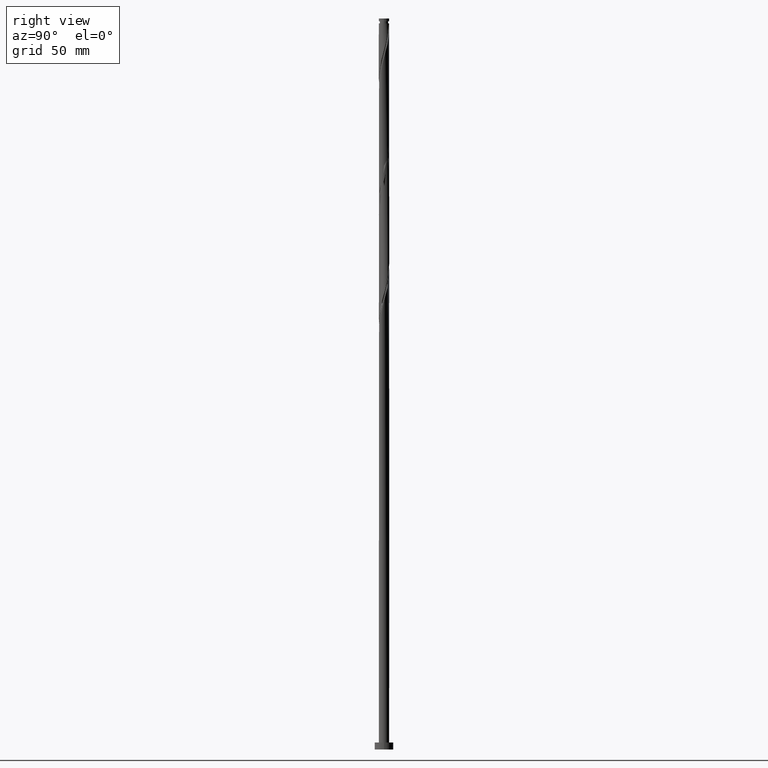
[diagram: clean part render]
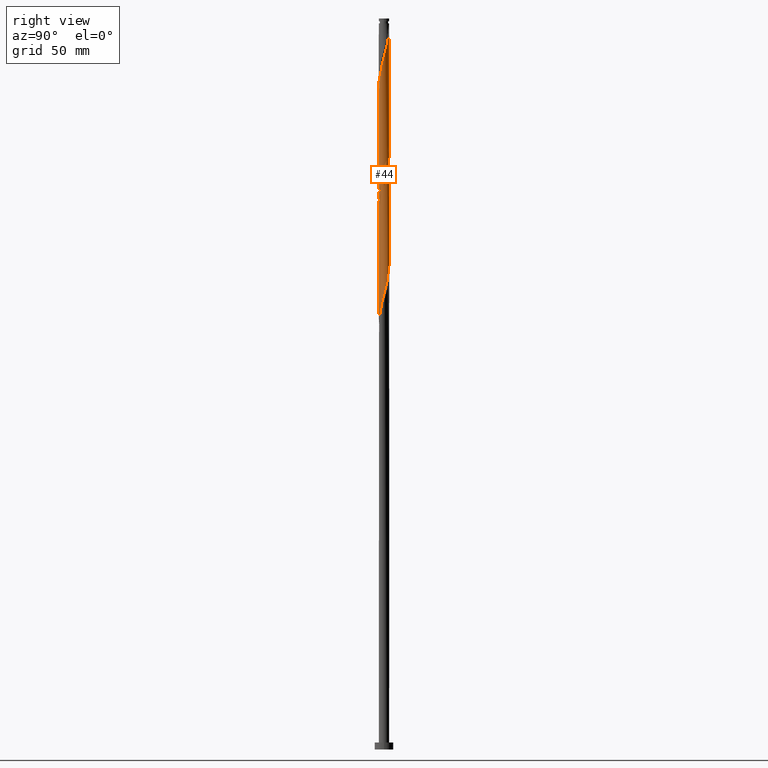
[diagram: same view with one face highlighted and labeled with its STEP entity id]
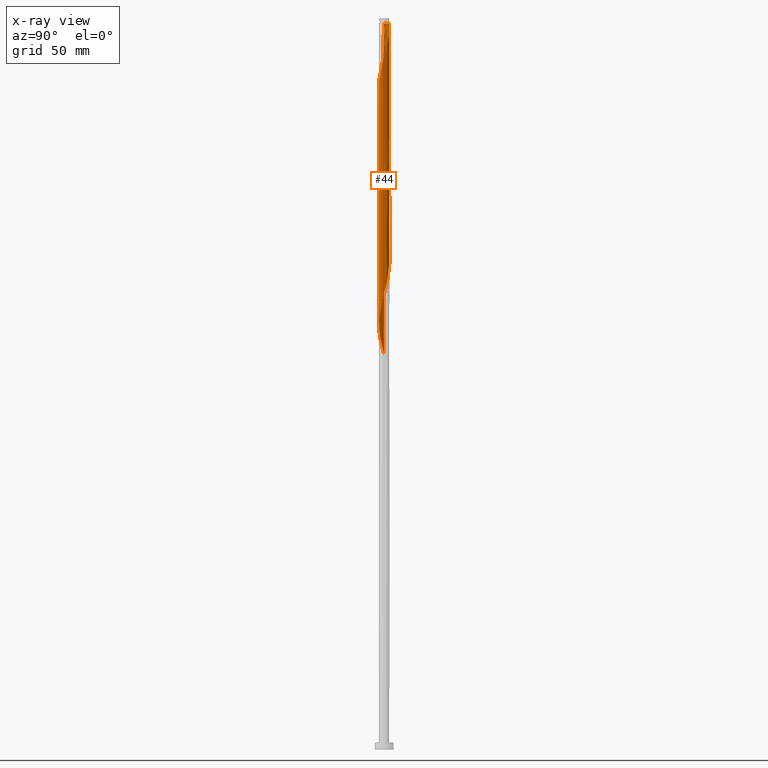
[diagram: x-ray of the same camera — body ghosted, the highlighted face saturated]
A machine part, right view. The second image highlights one B-rep face of the part: STEP entity #44.
The next image is the same camera in x-ray: the body ghosted, the highlighted face saturated — about 0% of this face is hidden behind the body in this view.
In plain terms, the highlighted cylindrical surface (bore or boss wall) has radius 2.25 mm, axis along (-0, -0, -1).
Its self-contained STEP definition (entity closure, byte-faithful):
#5 = CARTESIAN_POINT ( 'NONE',  ( -0.5533099276000269517, 2.180905345038903320, 211.6820797550641657 ) ) ;
#13 = CARTESIAN_POINT ( 'NONE',  ( 1.444774384835912029, -1.724855639444069944, 189.1820797550642510 ) ) ;
#23 = CARTESIAN_POINT ( 'NONE',  ( 2.154551328133884169, -0.6961881791777267958, 193.8695797550642794 ) ) ;
#28 = VECTOR ( 'NONE', #926, 1000.000000000000000 ) ;
#32 = CARTESIAN_POINT ( 'NONE',  ( 0.1993005142182367462, 2.255448671866116861, 208.8695797550642510 ) ) ;
#38 = EDGE_CURVE ( 'NONE', #1648, #606, #154, .T. ) ;
#44 = ADVANCED_FACE ( 'NONE', ( #1285 ), #888, .T. ) ;
#80 = CARTESIAN_POINT ( 'NONE',  ( -2.050083556160025910, 0.9271771204911509745, 271.6820797550641942 ) ) ;
#106 = CARTESIAN_POINT ( 'NONE',  ( 2.250000000000000888, -2.600816036125863714E-15, 248.9815968329702969 ) ) ;
#109 = CARTESIAN_POINT ( 'NONE',  ( 0.05414019825619529463, -2.249348536561815326, 236.0570797550642226 ) ) ;
#115 = CARTESIAN_POINT ( 'NONE',  ( 2.003102452848098736, 1.024734386752944593, 252.9320797550642226 ) ) ;
#134 = CARTESIAN_POINT ( 'NONE',  ( -0.4477443466980542963, 2.205000000000635563, 312.9320797550643647 ) ) ;
#136 = CARTESIAN_POINT ( 'NONE',  ( -2.243248401257516456, -0.3075809107306274881, 223.8695797550642510 ) ) ;
#144 = CARTESIAN_POINT ( 'NONE',  ( 0.6961881791777269068, 2.154551328133884169, 206.9945797550642510 ) ) ;
#153 = CARTESIAN_POINT ( 'NONE',  ( -0.1993005142182328604, 2.255448671866118193, 311.9945797550641373 ) ) ;
#154 =( BOUNDED_CURVE ( )  B_SPLINE_CURVE ( 2, ( #1352, #1783, #793, #268, #1497, #1075, #929, #1221, #511, #548, #1045, #411, #677, #1613, #109, #375, #1066, #1794, #258, #912, #800, #669, #156, #455, #700, #563, #1688, #136, #715, #287, #827, #1801, #311, #437, #1398, #420, #1240, #164, #956, #1519, #5, #1379, #854, #32, #820, #144, #1677, #691, #1513, #306, #1250, #976, #448, #846, #1539, #706, #1257, #1100, #984, #23, #579, #1671, #1116, #1404, #13, #172, #1545, #1267, #569, #1370, #587, #428, #1109, #968, #1125, #1529, #1694, #277, #685, #1231, #297, #838, #555, #1091, #1391, #1660, #620 ),
 .UNSPECIFIED., .F., .T. ) 
 B_SPLINE_CURVE_WITH_KNOTS ( ( 3, 2, 2, 2, 2, 2, 2, 2, 2, 2, 2, 2, 2, 2, 2, 2, 2, 2, 2, 2, 2, 2, 2, 2, 2, 2, 2, 2, 2, 2, 2, 2, 2, 2, 2, 2, 2, 2, 2, 2, 2, 2, 2, 3 ),
 ( 0.5545303401299221946, 0.5625000000000000000, 0.5714285714285713969, 0.5803571428571429047, 0.5892857142857143016, 0.5982142857142856984, 0.6071428571428570953, 0.6160714285714286031, 0.6250000000000000000, 0.6339285714285713969, 0.6428571428571429047, 0.6517857142857143016, 0.6607142857142856984, 0.6696428571428570953, 0.6785714285714286031, 0.6875000000000000000, 0.6964285714285713969, 0.7053571428571429047, 0.7142857142857143016, 0.7232142857142856984, 0.7321428571428570953, 0.7410714285714286031, 0.7500000000000000000, 0.7589285714285713969, 0.7678571428571429047, 0.7767857142857143016, 0.7857142857142856984, 0.7946428571428570953, 0.8035714285714286031, 0.8125000000000000000, 0.8214285714285713969, 0.8303571428571429047, 0.8392857142857143016, 0.8482142857142856984, 0.8571428571428570953, 0.8660714285714286031, 0.8750000000000000000, 0.8839285714285713969, 0.8928571428571427937, 0.9017857142857143016, 0.9107142857142856984, 0.9196428571428570953, 0.9285714285714286031, 0.9295303401299218615 ),
 .UNSPECIFIED. ) 
 CURVE ( )  GEOMETRIC_REPRESENTATION_ITEM ( )  RATIONAL_B_SPLINE_CURVE ( ( 0.9079949616362277265, 0.9039886423360908863, 0.9090909090909577994, 0.9033747362666324499, 0.9090909090909577994, 0.9033747362666324499, 0.9090909090909577994, 0.9033747362666324499, 0.9090909090909577994, 0.9033747362666324499, 0.9090909090909577994, 0.9033747362666324499, 0.9090909090909577994, 0.9033747362666324499, 0.9090909090909577994, 0.9033747362666324499, 0.9090909090909577994, 0.9033747362666324499, 0.9090909090909577994, 0.9033747362666324499, 0.9090909090909577994, 0.9033747362666324499, 0.9090909090909577994, 0.9033747362666324499, 0.9090909090909577994, 0.9033747362666324499, 0.9090909090909577994, 0.9033747362666324499, 0.9090909090909577994, 0.9033747362666324499, 0.9090909090909577994, 0.9033747362666324499, 0.9090909090909577994, 0.9033747362666324499, 0.9090909090909577994, 0.9033747362666324499, 0.9090909090909577994, 0.9033747362666324499, 0.9090909090909577994, 0.9033747362666324499, 0.9090909090909577994, 0.9033747362666324499, 0.9090909090909577994, 0.9033747362666324499, 0.9090909090909577994, 0.9033747362666324499, 0.9090909090909577994, 0.9033747362666324499, 0.9090909090909577994, 0.9033747362666324499, 0.9090909090909577994, 0.9033747362666324499, 0.9090909090909577994, 0.9033747362666324499, 0.9090909090909577994, 0.9033747362666324499, 0.9090909090909577994, 0.9033747362666324499, 0.9090909090909577994, 0.9033747362666324499, 0.9090909090909577994, 0.9033747362666324499, 0.9090909090909577994, 0.9033747362666324499, 0.9090909090909577994, 0.9033747362666324499, 0.9090909090909577994, 0.9033747362666324499, 0.9090909090909577994, 0.9033747362666324499, 0.9090909090909577994, 0.9033747362666324499, 0.9090909090909577994, 0.9033747362666324499, 0.9090909090909577994, 0.9033747362666324499, 0.9090909090909577994, 0.9033747362666324499, 0.9090909090909577994, 0.9033747362666324499, 0.9090909090909577994, 0.9033747362666324499, 0.9090909090909577994, 0.9033747362666324499, 0.9090909090909577994, 0.9084770030214996961, 0.9079949616362281706 ) ) 
 REPRESENTATION_ITEM ( '' )  );
#156 = CARTESIAN_POINT ( 'NONE',  ( -1.724855639444069721, -1.444774384835912473, 228.5570797550642226 ) ) ;
#163 = CARTESIAN_POINT ( 'NONE',  ( 2.003102452848099180, -1.024734386752946591, 294.1820797550641942 ) ) ;
#164 = CARTESIAN_POINT ( 'NONE',  ( -1.250429829036464380, 1.887642616875907065, 214.4945797550642226 ) ) ;
#172 = CARTESIAN_POINT ( 'NONE',  ( 1.250429829036463714, -1.887642616875907287, 188.2445797550642226 ) ) ;
#218 = CIRCLE ( 'NONE', #1020, 2.249999999999973355 ) ;
#220 = CARTESIAN_POINT ( 'NONE',  ( -2.154551328133884169, 0.6961881791777263517, 272.6195797550642510 ) ) ;
#229 = CARTESIAN_POINT ( 'NONE',  ( 0.4477443466979820763, 2.204999999999998739, 260.4320797550641942 ) ) ;
#242 = CARTESIAN_POINT ( 'NONE',  ( 0.6961881791777269068, 2.154551328133884169, 259.4945797550643078 ) ) ;
#252 = CARTESIAN_POINT ( 'NONE',  ( -2.204999999999998739, 0.4477443466979816322, 273.5570797550641373 ) ) ;
#258 = CARTESIAN_POINT ( 'NONE',  ( -0.9271771204911509745, -2.050083556160025910, 232.3070797550641657 ) ) ;
#268 = CARTESIAN_POINT ( 'NONE',  ( 2.154551328133884169, -0.6961881791777267958, 246.3695797550642226 ) ) ;
#272 = EDGE_CURVE ( 'NONE', #1506, #811, #218, .T. ) ;
#277 = CARTESIAN_POINT ( 'NONE',  ( -1.562068662012233489, -1.639118940635362343, 176.9945797550642510 ) ) ;
#287 = CARTESIAN_POINT ( 'NONE',  ( -2.255448671866115973, 0.1993005142182368850, 221.9945797550641942 ) ) ;
#288 = LINE ( 'NONE', #429, #1414 ) ;
#294 = CARTESIAN_POINT ( 'NONE',  ( 2.180905345038904652, -0.5533099276000280620, 296.0570797550643078 ) ) ;
#297 = CARTESIAN_POINT ( 'NONE',  ( -2.003102452848098736, -1.024734386752944815, 174.1820797550641657 ) ) ;
#299 = CARTESIAN_POINT ( 'NONE',  ( -2.249999999999973355, 0.000000000000000000, 312.9320797550641942 ) ) ;
#306 = CARTESIAN_POINT ( 'NONE',  ( 1.562068662012233711, 1.639118940635362121, 203.2445797550642794 ) ) ;
#310 = CARTESIAN_POINT ( 'NONE',  ( 2.249348536561817991, -0.05414019825619617587, 297.9320797550641942 ) ) ;
#311 = CARTESIAN_POINT ( 'NONE',  ( -2.050083556160025910, 0.9271771204911509745, 219.1820797550642226 ) ) ;
#322 = DIRECTION ( 'NONE',  ( -0.000000000000000000, -0.000000000000000000, -1.000000000000000000 ) ) ;
#332 = CARTESIAN_POINT ( 'NONE',  ( 0.000000000000000000, 0.000000000000000000, 315.0000000000000000 ) ) ;
#341 = ORIENTED_EDGE ( 'NONE', *, *, #1792, .T. ) ;
#371 = CARTESIAN_POINT ( 'NONE',  ( -1.639118940635362343, 1.562068662012233267, 268.8695797550643078 ) ) ;
#375 = CARTESIAN_POINT ( 'NONE',  ( -0.1993005142182369682, -2.255448671866115973, 235.1195797550641942 ) ) ;
#393 = ORIENTED_EDGE ( 'NONE', *, *, #636, .F. ) ;
#408 = CARTESIAN_POINT ( 'NONE',  ( 0.5533099276000282840, 2.180905345038904652, 309.1820797550643078 ) ) ;
#411 = CARTESIAN_POINT ( 'NONE',  ( 0.7990389444694261378, -2.118562288820290185, 238.8695797550641942 ) ) ;
#420 = CARTESIAN_POINT ( 'NONE',  ( -1.639118940635362343, 1.562068662012233267, 216.3695797550641942 ) ) ;
#426 = CARTESIAN_POINT ( 'NONE',  ( 1.639118940635364341, 1.562068662012233933, 304.4945797550641942 ) ) ;
#428 = CARTESIAN_POINT ( 'NONE',  ( -0.1993005142182369682, -2.255448671866115973, 182.6195797550642510 ) ) ;
#429 = CARTESIAN_POINT ( 'NONE',  ( -2.250000000000000000, 0.000000000000000000, 315.0000000000000000 ) ) ;
#437 = CARTESIAN_POINT ( 'NONE',  ( -1.945615784186168984, 1.158166061804576152, 218.2445797550642794 ) ) ;
#448 = CARTESIAN_POINT ( 'NONE',  ( 2.003102452848098736, 1.024734386752944593, 200.4320797550642510 ) ) ;
#455 = CARTESIAN_POINT ( 'NONE',  ( -1.887642616875907065, -1.250429829036463714, 227.6195797550642226 ) ) ;
#481 = DIRECTION ( 'NONE',  ( -1.000000000000000000, 0.000000000000000000, 0.000000000000000000 ) ) ;
#497 = CARTESIAN_POINT ( 'NONE',  ( 1.724855639444069944, 1.444774384835912029, 254.8070797550642226 ) ) ;
#498 = CARTESIAN_POINT ( 'NONE',  ( -1.792367362410767440, -1.360117361908405487, 277.3070797550641373 ) ) ;
#507 = CARTESIAN_POINT ( 'NONE',  ( -0.3075809107306279322, 2.243248401257516456, 263.2445797550642510 ) ) ;
#511 = CARTESIAN_POINT ( 'NONE',  ( 1.444774384835912029, -1.724855639444069944, 241.6820797550642226 ) ) ;
#526 = CARTESIAN_POINT ( 'NONE',  ( -1.945615784186170538, -1.158166061804576374, 276.3695797550641942 ) ) ;
#536 = CARTESIAN_POINT ( 'NONE',  ( -0.5533099276000279509, -2.180905345038904652, 282.9320797550641373 ) ) ;
#548 = CARTESIAN_POINT ( 'NONE',  ( 1.250429829036463714, -1.887642616875907287, 240.7445797550642794 ) ) ;
#555 = CARTESIAN_POINT ( 'NONE',  ( -2.180905345038903320, -0.5533099276000267297, 172.3070797550641942 ) ) ;
#563 = CARTESIAN_POINT ( 'NONE',  ( -2.118562288820290185, -0.7990389444694261378, 225.7445797550642794 ) ) ;
#569 = CARTESIAN_POINT ( 'NONE',  ( 0.5533099276000267297, -2.180905345038903320, 185.4320797550641657 ) ) ;
#573 = EDGE_LOOP ( 'NONE', ( #1469, #1419, #393, #341, #1428, #1038, #1631, #748 ) ) ;
#575 = EDGE_CURVE ( 'NONE', #1506, #1708, #901, .T. ) ;
#579 = CARTESIAN_POINT ( 'NONE',  ( 2.050083556160025910, -0.9271771204911513076, 192.9320797550641942 ) ) ;
#587 = CARTESIAN_POINT ( 'NONE',  ( 0.05414019825619529463, -2.249348536561815326, 183.5570797550642510 ) ) ;
#603 = CARTESIAN_POINT ( 'NONE',  ( -2.250000000000002220, 1.548549002858290635E-15, 271.8825626771580914 ) ) ;
#606 = VERTEX_POINT ( 'NONE', #635 ) ;
#616 = VERTEX_POINT ( 'NONE', #1181 ) ;
#620 = CARTESIAN_POINT ( 'NONE',  ( -2.250000000000000888, 2.354540773020688484E-15, 170.2315968329703253 ) ) ;
#626 = CARTESIAN_POINT ( 'NONE',  ( -2.250000000000000444, -1.115701570734050336E-15, 275.2315968329703537 ) ) ;
#635 = CARTESIAN_POINT ( 'NONE',  ( -2.250000000000000888, 2.354540773020688484E-15, 170.2315968329703253 ) ) ;
#636 = EDGE_CURVE ( 'NONE', #958, #811, #1018, .T. ) ;
#655 = CARTESIAN_POINT ( 'NONE',  ( -1.250429829036464380, 1.887642616875907065, 266.9945797550642510 ) ) ;
#660 = CARTESIAN_POINT ( 'NONE',  ( 2.250000000000000888, -2.600816036125863714E-15, 248.9815968329702969 ) ) ;
#665 = CARTESIAN_POINT ( 'NONE',  ( -1.024734386752946369, -2.003102452848099180, 281.0570797550641373 ) ) ;
#669 = CARTESIAN_POINT ( 'NONE',  ( -1.562068662012233489, -1.639118940635362343, 229.4945797550642510 ) ) ;
#671 = CARTESIAN_POINT ( 'NONE',  ( -2.250000000000000000, -1.115701570734050336E-15, 275.2315968329703537 ) ) ;
#676 = CARTESIAN_POINT ( 'NONE',  ( 0.4477443466979814657, -2.205000000000001847, 286.6820797550640805 ) ) ;
#677 = CARTESIAN_POINT ( 'NONE',  ( 0.5533099276000267297, -2.180905345038903320, 237.9320797550642226 ) ) ;
#685 = CARTESIAN_POINT ( 'NONE',  ( -1.724855639444069721, -1.444774384835912473, 176.0570797550642226 ) ) ;
#689 = CARTESIAN_POINT ( 'NONE',  ( 1.945615784186170538, 1.158166061804575486, 302.6195797550641942 ) ) ;
#691 = CARTESIAN_POINT ( 'NONE',  ( 1.158166061804576374, 1.945615784186168318, 205.1195797550642794 ) ) ;
#699 = CARTESIAN_POINT ( 'NONE',  ( 1.158166061804576374, -1.945615784186170538, 289.4945797550641373 ) ) ;
#700 = CARTESIAN_POINT ( 'NONE',  ( -2.003102452848098736, -1.024734386752944815, 226.6820797550641942 ) ) ;
#705 = CARTESIAN_POINT ( 'NONE',  ( 0.7990389444694278032, 2.118562288820291517, 308.2445797550641373 ) ) ;
#706 = CARTESIAN_POINT ( 'NONE',  ( 2.243248401257516456, 0.3075809107306272105, 197.6195797550642794 ) ) ;
#713 = CARTESIAN_POINT ( 'NONE',  ( 1.444774384835914915, 1.724855639444071054, 305.4320797550641942 ) ) ;
#715 = CARTESIAN_POINT ( 'NONE',  ( -2.249348536561815326, -0.05414019825619541260, 222.9320797550642226 ) ) ;
#734 = DIRECTION ( 'NONE',  ( -0.000000000000000000, -0.000000000000000000, -1.000000000000000000 ) ) ;
#743 = DIRECTION ( 'NONE',  ( -0.000000000000000000, -0.000000000000000000, -1.000000000000000000 ) ) ;
#748 = ORIENTED_EDGE ( 'NONE', *, *, #1216, .F. ) ;
#771 = CARTESIAN_POINT ( 'NONE',  ( -0.05414019825619550280, 2.249348536561815326, 262.3070797550642510 ) ) ;
#787 = CARTESIAN_POINT ( 'NONE',  ( -1.444774384835913139, 1.724855639444069721, 267.9320797550641942 ) ) ;
#793 = CARTESIAN_POINT ( 'NONE',  ( 2.204999999999998739, -0.4477443466979819098, 247.3070797550642226 ) ) ;
#797 = CARTESIAN_POINT ( 'NONE',  ( 0.9271771204911515296, 2.050083556160025466, 258.5570797550641942 ) ) ;
#800 = CARTESIAN_POINT ( 'NONE',  ( -1.360117361908404598, -1.792367362410764997, 230.4320797550642226 ) ) ;
#809 = CARTESIAN_POINT ( 'NONE',  ( -2.250000000000003997, -0.2261335084333156442, 272.7208337561216922 ) ) ;
#811 = VERTEX_POINT ( 'NONE', #134 ) ;
#820 = CARTESIAN_POINT ( 'NONE',  ( 0.4477443466979820763, 2.204999999999998739, 207.9320797550642510 ) ) ;
#826 = CARTESIAN_POINT ( 'NONE',  ( 1.024734386752946591, 2.003102452848099180, 307.3070797550641373 ) ) ;
#827 = CARTESIAN_POINT ( 'NONE',  ( -2.204999999999998739, 0.4477443466979816322, 221.0570797550642226 ) ) ;
#835 = CARTESIAN_POINT ( 'NONE',  ( 2.205000000000001847, 0.4477443466979812436, 299.8070797550641942 ) ) ;
#838 = CARTESIAN_POINT ( 'NONE',  ( -2.118562288820290185, -0.7990389444694261378, 173.2445797550642794 ) ) ;
#845 = CARTESIAN_POINT ( 'NONE',  ( 1.792367362410767440, 1.360117361908405265, 303.5570797550641942 ) ) ;
#846 = CARTESIAN_POINT ( 'NONE',  ( 2.118562288820290185, 0.7990389444694260268, 199.4945797550642510 ) ) ;
#854 = CARTESIAN_POINT ( 'NONE',  ( -0.05414019825619550280, 2.249348536561815326, 209.8070797550642226 ) ) ;
#880 = LINE ( 'NONE', #1273, #1003 ) ;
#888 = CYLINDRICAL_SURFACE ( 'NONE', #1079, 2.250000000000000000 ) ;
#900 = CARTESIAN_POINT ( 'NONE',  ( 1.887642616875907287, 1.250429829036463714, 253.8695797550641373 ) ) ;
#901 = LINE ( 'NONE', #1329, #28 ) ;
#912 = CARTESIAN_POINT ( 'NONE',  ( -1.158166061804576152, -1.945615784186168984, 231.3695797550642510 ) ) ;
#924 = CARTESIAN_POINT ( 'NONE',  ( -2.249999999999999556, 0.2261335084333297996, 274.3933257540066393 ) ) ;
#926 = DIRECTION ( 'NONE',  ( -0.000000000000000000, -0.000000000000000000, -1.000000000000000000 ) ) ;
#929 = CARTESIAN_POINT ( 'NONE',  ( 1.792367362410764997, -1.360117361908404598, 243.5570797550642510 ) ) ;
#934 = CARTESIAN_POINT ( 'NONE',  ( 1.158166061804576374, 1.945615784186168318, 257.6195797550643078 ) ) ;
#935 = CARTESIAN_POINT ( 'NONE',  ( -0.05414019825619597465, -2.249348536561817991, 284.8070797550641373 ) ) ;
#956 = CARTESIAN_POINT ( 'NONE',  ( -1.024734386752945037, 2.003102452848098736, 213.5570797550642510 ) ) ;
#958 = VERTEX_POINT ( 'NONE', #603 ) ;
#966 = CARTESIAN_POINT ( 'NONE',  ( 1.724855639444071054, -1.444774384835914915, 292.3070797550641942 ) ) ;
#968 = CARTESIAN_POINT ( 'NONE',  ( -0.6961881791777263517, -2.154551328133884169, 180.7445797550642226 ) ) ;
#976 = CARTESIAN_POINT ( 'NONE',  ( 1.887642616875907287, 1.250429829036463714, 201.3695797550642226 ) ) ;
#982 = CARTESIAN_POINT ( 'NONE',  ( 1.360117361908405265, -1.792367362410767440, 290.4320797550642510 ) ) ;
#984 = CARTESIAN_POINT ( 'NONE',  ( 2.204999999999998739, -0.4477443466979819098, 194.8070797550642226 ) ) ;
#1003 = VECTOR ( 'NONE', #743, 1000.000000000000000 ) ;
#1018 =( BOUNDED_CURVE ( )  B_SPLINE_CURVE ( 2, ( #1638, #809, #1049, #1199, #1773, #526, #498, #1629, #1495, #1349, #665, #1207, #536, #1073, #935, #1359, #676, #1035, #1538, #699, #982, #1686, #966, #1114, #163, #1544, #294, #1081, #310, #1230, #835, #1378, #1675, #689, #845, #426, #713, #1527, #826, #705, #408, #1647, #1518, #153, #1397 ),
 .UNSPECIFIED., .F., .T. ) 
 B_SPLINE_CURVE_WITH_KNOTS ( ( 3, 2, 2, 2, 2, 2, 2, 2, 2, 2, 2, 2, 2, 2, 2, 2, 2, 2, 2, 2, 2, 2, 3 ),
 ( 0.5545303401299217505, 0.5625000000000000000, 0.5714285714285713969, 0.5803571428571427937, 0.5892857142857143016, 0.5982142857142856984, 0.6071428571428572063, 0.6160714285714286031, 0.6250000000000000000, 0.6339285714285713969, 0.6428571428571427937, 0.6517857142857141906, 0.6607142857142855874, 0.6696428571428570953, 0.6785714285714284921, 0.6874999999999998890, 0.6964285714285712858, 0.7053571428571426827, 0.7142857142857141906, 0.7232142857142855874, 0.7321428571428570953, 0.7410714285714284921, 0.7499999999999998890 ),
 .UNSPECIFIED. ) 
 CURVE ( )  GEOMETRIC_REPRESENTATION_ITEM ( )  RATIONAL_B_SPLINE_CURVE ( ( 0.9079949616362321674, 0.9039886423360945500, 0.9090909090909616852, 0.9033747362666364467, 0.9090909090909616852, 0.9033747362666364467, 0.9090909090909616852, 0.9033747362666364467, 0.9090909090909616852, 0.9033747362666364467, 0.9090909090909616852, 0.9033747362666364467, 0.9090909090909616852, 0.9033747362666364467, 0.9090909090909616852, 0.9033747362666364467, 0.9090909090909616852, 0.9033747362666364467, 0.9090909090909616852, 0.9033747362666364467, 0.9090909090909616852, 0.9033747362666364467, 0.9090909090909616852, 0.9033747362666364467, 0.9090909090909616852, 0.9033747362666364467, 0.9090909090909616852, 0.9033747362666364467, 0.9090909090909616852, 0.9033747362666364467, 0.9090909090909616852, 0.9033747362666364467, 0.9090909090909616852, 0.9033747362666364467, 0.9090909090909616852, 0.9033747362666364467, 0.9090909090909616852, 0.9033747362666364467, 0.9090909090909616852, 0.9033747362666364467, 0.9090909090909616852, 0.9033747362666364467, 0.9090909090909616852, 0.9033747362666365577, 0.9090909090909615742 ) ) 
 REPRESENTATION_ITEM ( '' )  );
#1020 = AXIS2_PLACEMENT_3D ( 'NONE', #1311, #734, #481 ) ;
#1034 = CARTESIAN_POINT ( 'NONE',  ( -1.792367362410765663, 1.360117361908404376, 269.8070797550642510 ) ) ;
#1035 = CARTESIAN_POINT ( 'NONE',  ( 0.6961881791777264628, -2.154551328133885946, 287.6195797550641373 ) ) ;
#1038 = ORIENTED_EDGE ( 'NONE', *, *, #1182, .F. ) ;
#1045 = CARTESIAN_POINT ( 'NONE',  ( 1.024734386752944593, -2.003102452848098736, 239.8070797550642226 ) ) ;
#1049 = CARTESIAN_POINT ( 'NONE',  ( -2.205000000000001847, -0.4477443466979815212, 273.5570797550642510 ) ) ;
#1066 = CARTESIAN_POINT ( 'NONE',  ( -0.4477443466979817432, -2.204999999999998739, 234.1820797550642510 ) ) ;
#1073 = CARTESIAN_POINT ( 'NONE',  ( -0.3075809107306283763, -2.243248401257517788, 283.8695797550641373 ) ) ;
#1075 = CARTESIAN_POINT ( 'NONE',  ( 1.945615784186168318, -1.158166061804576152, 244.4945797550642510 ) ) ;
#1079 = AXIS2_PLACEMENT_3D ( 'NONE', #332, #322, #1742 ) ;
#1081 = CARTESIAN_POINT ( 'NONE',  ( 2.243248401257516900, -0.3075809107306285428, 296.9945797550641942 ) ) ;
#1091 = CARTESIAN_POINT ( 'NONE',  ( -2.243248401257516456, -0.3075809107306274881, 171.3695797550642510 ) ) ;
#1100 = CARTESIAN_POINT ( 'NONE',  ( 2.255448671866115973, -0.1993005142182371903, 195.7445797550642510 ) ) ;
#1109 = CARTESIAN_POINT ( 'NONE',  ( -0.4477443466979817432, -2.204999999999998739, 181.6820797550641657 ) ) ;
#1114 = CARTESIAN_POINT ( 'NONE',  ( 1.887642616875908175, -1.250429829036465490, 293.2445797550641942 ) ) ;
#1116 = CARTESIAN_POINT ( 'NONE',  ( 1.792367362410764997, -1.360117361908404598, 191.0570797550641657 ) ) ;
#1125 = CARTESIAN_POINT ( 'NONE',  ( -0.9271771204911509745, -2.050083556160025910, 179.8070797550641942 ) ) ;
#1169 = CARTESIAN_POINT ( 'NONE',  ( -1.024734386752945037, 2.003102452848098736, 266.0570797550641373 ) ) ;
#1181 = CARTESIAN_POINT ( 'NONE',  ( 2.250000000000000000, 2.755455298081544285E-16, 312.9320797550643647 ) ) ;
#1182 = EDGE_CURVE ( 'NONE', #616, #1648, #880, .T. ) ;
#1198 = CARTESIAN_POINT ( 'NONE',  ( -0.5533099276000269517, 2.180905345038903320, 264.1820797550641942 ) ) ;
#1199 = CARTESIAN_POINT ( 'NONE',  ( -2.154551328133885946, -0.6961881791777264628, 274.4945797550641373 ) ) ;
#1207 = CARTESIAN_POINT ( 'NONE',  ( -0.7990389444694278032, -2.118562288820291517, 281.9945797550641942 ) ) ;
#1216 = EDGE_CURVE ( 'NONE', #1708, #1648, #1659, .T. ) ;
#1221 = CARTESIAN_POINT ( 'NONE',  ( 1.639118940635362343, -1.562068662012233489, 242.6195797550642794 ) ) ;
#1230 = CARTESIAN_POINT ( 'NONE',  ( 2.255448671866118193, 0.1993005142182362743, 298.8695797550642510 ) ) ;
#1231 = CARTESIAN_POINT ( 'NONE',  ( -1.887642616875907065, -1.250429829036463714, 175.1195797550642226 ) ) ;
#1240 = CARTESIAN_POINT ( 'NONE',  ( -1.444774384835913139, 1.724855639444069721, 215.4320797550641657 ) ) ;
#1241 = DIRECTION ( 'NONE',  ( -0.000000000000000000, -0.000000000000000000, -1.000000000000000000 ) ) ;
#1250 = CARTESIAN_POINT ( 'NONE',  ( 1.724855639444069944, 1.444774384835912029, 202.3070797550642226 ) ) ;
#1257 = CARTESIAN_POINT ( 'NONE',  ( 2.249348536561815326, 0.05414019825619517667, 196.6820797550641942 ) ) ;
#1267 = CARTESIAN_POINT ( 'NONE',  ( 0.7990389444694261378, -2.118562288820290185, 186.3695797550642794 ) ) ;
#1273 = CARTESIAN_POINT ( 'NONE',  ( 2.250000000000000000, 2.755455298081544285E-16, 315.0000000000000000 ) ) ;
#1285 = FACE_OUTER_BOUND ( 'NONE', #573, .T. ) ;
#1310 = CARTESIAN_POINT ( 'NONE',  ( -1.945615784186168984, 1.158166061804576152, 270.7445797550643078 ) ) ;
#1311 = CARTESIAN_POINT ( 'NONE',  ( 0.000000000000000000, 0.000000000000000000, 312.9320797550641942 ) ) ;
#1318 = CARTESIAN_POINT ( 'NONE',  ( 1.562068662012233711, 1.639118940635362121, 255.7445797550642510 ) ) ;
#1329 = CARTESIAN_POINT ( 'NONE',  ( -2.250000000000000000, 0.000000000000000000, 315.0000000000000000 ) ) ;
#1339 = CARTESIAN_POINT ( 'NONE',  ( -0.7990389444694264709, 2.118562288820290185, 265.1195797550643078 ) ) ;
#1347 = CARTESIAN_POINT ( 'NONE',  ( 2.243248401257516456, 0.3075809107306272105, 250.1195797550642794 ) ) ;
#1349 = CARTESIAN_POINT ( 'NONE',  ( -1.250429829036465046, -1.887642616875907953, 280.1195797550642510 ) ) ;
#1352 = CARTESIAN_POINT ( 'NONE',  ( 2.250000000000000888, -2.600816036125863714E-15, 248.9815968329702969 ) ) ;
#1359 = CARTESIAN_POINT ( 'NONE',  ( 0.1993005142182363854, -2.255448671866118193, 285.7445797550643078 ) ) ;
#1370 = CARTESIAN_POINT ( 'NONE',  ( 0.3075809107306273771, -2.243248401257516456, 184.4945797550642226 ) ) ;
#1378 = CARTESIAN_POINT ( 'NONE',  ( 2.154551328133885946, 0.6961881791777262407, 300.7445797550641373 ) ) ;
#1379 = CARTESIAN_POINT ( 'NONE',  ( -0.3075809107306279322, 2.243248401257516456, 210.7445797550642794 ) ) ;
#1391 = CARTESIAN_POINT ( 'NONE',  ( -2.249348536561815326, -0.05414019825619541260, 170.4320797550642226 ) ) ;
#1397 = CARTESIAN_POINT ( 'NONE',  ( -0.4477443466980543518, 2.205000000000635563, 312.9320797550643647 ) ) ;
#1398 = CARTESIAN_POINT ( 'NONE',  ( -1.792367362410765663, 1.360117361908404376, 217.3070797550641657 ) ) ;
#1404 = CARTESIAN_POINT ( 'NONE',  ( 1.639118940635362343, -1.562068662012233489, 190.1195797550642510 ) ) ;
#1414 = VECTOR ( 'NONE', #1241, 1000.000000000000000 ) ;
#1419 = ORIENTED_EDGE ( 'NONE', *, *, #272, .T. ) ;
#1428 = ORIENTED_EDGE ( 'NONE', *, *, #38, .F. ) ;
#1469 = ORIENTED_EDGE ( 'NONE', *, *, #575, .F. ) ;
#1484 = CARTESIAN_POINT ( 'NONE',  ( 2.250000000000001332, 0.02707401862437282605, 249.0819595211954152 ) ) ;
#1494 = CARTESIAN_POINT ( 'NONE',  ( 1.360117361908404598, 1.792367362410764997, 256.6820797550641942 ) ) ;
#1495 = CARTESIAN_POINT ( 'NONE',  ( -1.444774384835914915, -1.724855639444071276, 279.1820797550642510 ) ) ;
#1497 = CARTESIAN_POINT ( 'NONE',  ( 2.050083556160025910, -0.9271771204911513076, 245.4320797550641373 ) ) ;
#1506 = VERTEX_POINT ( 'NONE', #299 ) ;
#1513 = CARTESIAN_POINT ( 'NONE',  ( 1.360117361908404598, 1.792367362410764997, 204.1820797550641657 ) ) ;
#1518 = CARTESIAN_POINT ( 'NONE',  ( 0.05414019825619634935, 2.249348536561817991, 311.0570797550641942 ) ) ;
#1519 = CARTESIAN_POINT ( 'NONE',  ( -0.7990389444694264709, 2.118562288820290185, 212.6195797550642226 ) ) ;
#1527 = CARTESIAN_POINT ( 'NONE',  ( 1.250429829036465490, 1.887642616875907953, 306.3695797550641942 ) ) ;
#1529 = CARTESIAN_POINT ( 'NONE',  ( -1.158166061804576152, -1.945615784186168984, 178.8695797550642510 ) ) ;
#1538 = CARTESIAN_POINT ( 'NONE',  ( 0.9271771204911511965, -2.050083556160028131, 288.5570797550641373 ) ) ;
#1539 = CARTESIAN_POINT ( 'NONE',  ( 2.180905345038903320, 0.5533099276000265077, 198.5570797550641942 ) ) ;
#1544 = CARTESIAN_POINT ( 'NONE',  ( 2.118562288820291517, -0.7990389444694278032, 295.1195797550641942 ) ) ;
#1545 = CARTESIAN_POINT ( 'NONE',  ( 1.024734386752944593, -2.003102452848098736, 187.3070797550642226 ) ) ;
#1602 = CARTESIAN_POINT ( 'NONE',  ( 2.180905345038903320, 0.5533099276000265077, 251.0570797550641942 ) ) ;
#1613 = CARTESIAN_POINT ( 'NONE',  ( 0.3075809107306273771, -2.243248401257516456, 236.9945797550642510 ) ) ;
#1628 = CARTESIAN_POINT ( 'NONE',  ( 2.118562288820290185, 0.7990389444694260268, 251.9945797550642794 ) ) ;
#1629 = CARTESIAN_POINT ( 'NONE',  ( -1.639118940635364119, -1.562068662012233933, 278.2445797550642510 ) ) ;
#1631 = ORIENTED_EDGE ( 'NONE', *, *, #1182, .T. ) ;
#1638 = CARTESIAN_POINT ( 'NONE',  ( -2.250000000000002220, 1.548549002858290635E-15, 271.8825626771580914 ) ) ;
#1647 = CARTESIAN_POINT ( 'NONE',  ( 0.3075809107306285428, 2.243248401257516900, 310.1195797550641373 ) ) ;
#1648 = VERTEX_POINT ( 'NONE', #660 ) ;
#1659 =( BOUNDED_CURVE ( )  B_SPLINE_CURVE ( 2, ( #626, #924, #252, #220, #80, #1310, #1034, #371, #787, #655, #1169, #1339, #1198, #507, #771, #1741, #229, #242, #797, #934, #1494, #1318, #497, #900, #115, #1628, #1602, #1347, #1780, #1484, #106 ),
 .UNSPECIFIED., .F., .T. ) 
 B_SPLINE_CURVE_WITH_KNOTS ( ( 3, 2, 2, 2, 2, 2, 2, 2, 2, 2, 2, 2, 2, 2, 2, 3 ),
 ( 0.4295303401299221946, 0.4375000000000000000, 0.4464285714285714524, 0.4553571428571428492, 0.4642857142857143016, 0.4732142857142856984, 0.4821428571428571508, 0.4910714285714285476, 0.5000000000000000000, 0.5089285714285713969, 0.5178571428571429047, 0.5267857142857143016, 0.5357142857142856984, 0.5446428571428570953, 0.5535714285714286031, 0.5545303401299221946 ),
 .UNSPECIFIED. ) 
 CURVE ( )  GEOMETRIC_REPRESENTATION_ITEM ( )  RATIONAL_B_SPLINE_CURVE ( ( 0.9079949616362277265, 0.9039886423360908863, 0.9090909090909577994, 0.9033747362666324499, 0.9090909090909577994, 0.9033747362666324499, 0.9090909090909577994, 0.9033747362666324499, 0.9090909090909577994, 0.9033747362666324499, 0.9090909090909577994, 0.9033747362666324499, 0.9090909090909577994, 0.9033747362666324499, 0.9090909090909577994, 0.9033747362666324499, 0.9090909090909577994, 0.9033747362666324499, 0.9090909090909577994, 0.9033747362666324499, 0.9090909090909577994, 0.9033747362666324499, 0.9090909090909577994, 0.9033747362666324499, 0.9090909090909577994, 0.9033747362666324499, 0.9090909090909577994, 0.9033747362666324499, 0.9090909090909577994, 0.9084770030214994740, 0.9079949616362277265 ) ) 
 REPRESENTATION_ITEM ( '' )  );
#1660 = CARTESIAN_POINT ( 'NONE',  ( -2.250000000000000444, -0.02707401862438246071, 170.3319595211953867 ) ) ;
#1671 = CARTESIAN_POINT ( 'NONE',  ( 1.945615784186168318, -1.158166061804576152, 191.9945797550642510 ) ) ;
#1675 = CARTESIAN_POINT ( 'NONE',  ( 2.050083556160028131, 0.9271771204911510855, 301.6820797550641942 ) ) ;
#1677 = CARTESIAN_POINT ( 'NONE',  ( 0.9271771204911515296, 2.050083556160025466, 206.0570797550642226 ) ) ;
#1686 = CARTESIAN_POINT ( 'NONE',  ( 1.562068662012233933, -1.639118940635364119, 291.3695797550641942 ) ) ;
#1688 = CARTESIAN_POINT ( 'NONE',  ( -2.180905345038903320, -0.5533099276000267297, 224.8070797550642226 ) ) ;
#1694 = CARTESIAN_POINT ( 'NONE',  ( -1.360117361908404598, -1.792367362410764997, 177.9320797550642226 ) ) ;
#1708 = VERTEX_POINT ( 'NONE', #671 ) ;
#1741 = CARTESIAN_POINT ( 'NONE',  ( 0.1993005142182367462, 2.255448671866116861, 261.3695797550642510 ) ) ;
#1742 = DIRECTION ( 'NONE',  ( -1.000000000000000000, 0.000000000000000000, 0.000000000000000000 ) ) ;
#1773 = CARTESIAN_POINT ( 'NONE',  ( -2.050083556160028131, -0.9271771204911514186, 275.4320797550641942 ) ) ;
#1780 = CARTESIAN_POINT ( 'NONE',  ( 2.249348536561815326, 0.05414019825619517667, 249.1820797550642226 ) ) ;
#1783 = CARTESIAN_POINT ( 'NONE',  ( 2.249999999999999556, -0.2261335084333287448, 248.1433257540066677 ) ) ;
#1792 = EDGE_CURVE ( 'NONE', #958, #606, #288, .T. ) ;
#1794 = CARTESIAN_POINT ( 'NONE',  ( -0.6961881791777263517, -2.154551328133884169, 233.2445797550643078 ) ) ;
#1801 = CARTESIAN_POINT ( 'NONE',  ( -2.154551328133884169, 0.6961881791777263517, 220.1195797550642510 ) ) ;